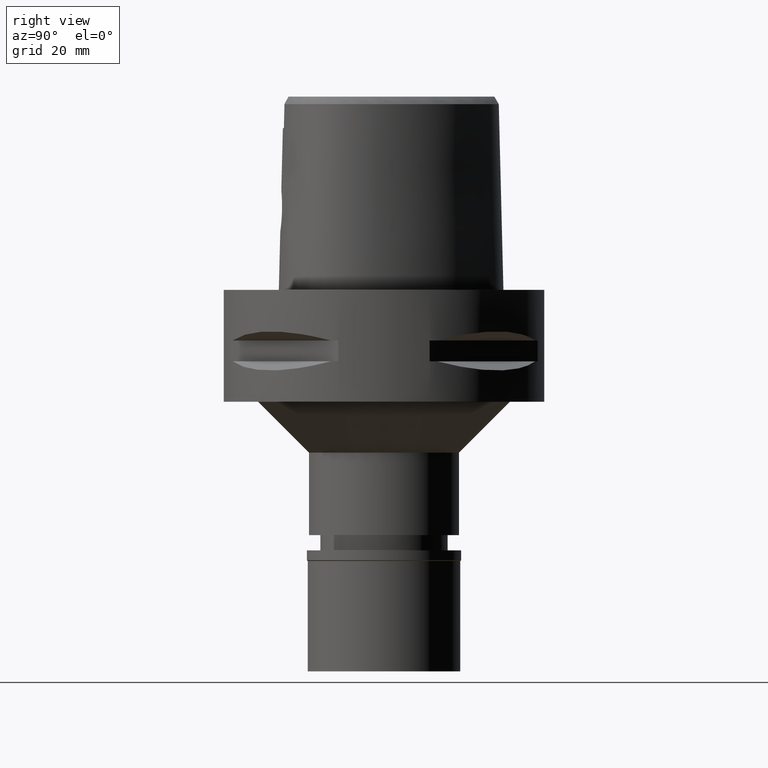
[diagram: clean part render]
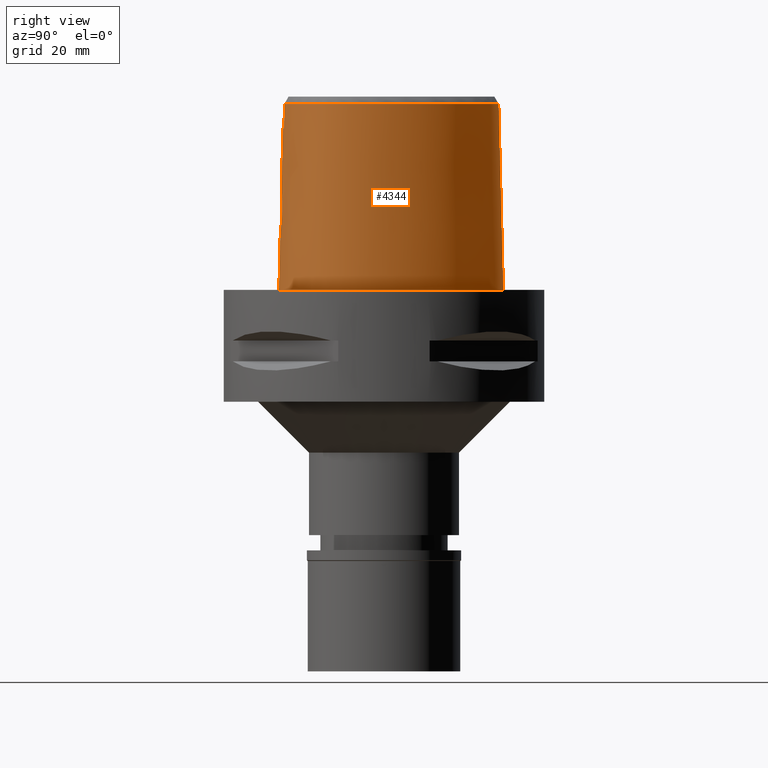
[diagram: same view with one face highlighted and labeled with its STEP entity id]
A machine part, right view. The second image highlights one B-rep face of the part: STEP entity #4344.
In plain terms, the highlighted face is a freeform B-spline surface patch.
Its self-contained STEP definition (entity closure, byte-faithful):
#2 = CARTESIAN_POINT ( 'NONE',  ( 20.36546124536000235, -11.75800453220999842, -0.7304376901931999289 ) ) ;
#5 = CARTESIAN_POINT ( 'NONE',  ( 21.32871516740315698, -4.105831245034091914, 36.52186680739941238 ) ) ;
#17 = CARTESIAN_POINT ( 'NONE',  ( 16.95889173002427341, -15.67838867706965900, -2.630565840567970770E-07 ) ) ;
#28 = CARTESIAN_POINT ( 'NONE',  ( 22.26285556564999979, -4.100361500046999730, -0.7304376901931999289 ) ) ;
#44 = CARTESIAN_POINT ( 'NONE',  ( 14.42198652022999994, 15.65278600269999920, -0.7304376901931999289 ) ) ;
#50 = CARTESIAN_POINT ( 'NONE',  ( 10.91891095220751673, -18.03046396093579773, 36.52186680739941238 ) ) ;
#54 = CARTESIAN_POINT ( 'NONE',  ( 1.219865165409127705, -20.36297158527778706, 11.63749257269483195 ) ) ;
#66 = CARTESIAN_POINT ( 'NONE',  ( 2.373090304260000227, 22.37624340749999874, 37.25232219984999915 ) ) ;
#77 = CARTESIAN_POINT ( 'NONE',  ( 2.711772060287280350, -20.25803822926189213, 12.49163124307199801 ) ) ;
#105 = CARTESIAN_POINT ( 'NONE',  ( 2.583733675546308728, -20.11473943910987217, 18.64718192965807475 ) ) ;
#113 = CARTESIAN_POINT ( 'NONE',  ( 18.06826689099458605, 10.43171875330947174, -2.630565840567970770E-07 ) ) ;
#134 = CARTESIAN_POINT ( 'NONE',  ( 20.74942741502001908, 4.657187502242146948, -2.630565840567970770E-07 ) ) ;
#142 = CARTESIAN_POINT ( 'NONE',  ( 0.6155340740543999711, 23.51883497781000187, -0.7304376901931999289 ) ) ;
#155 = B_SPLINE_CURVE_WITH_KNOTS ( 'NONE', 3,
 ( #664, #1854, #3633, #3702 ),
 .UNSPECIFIED., .F., .F.,
 ( 4, 4 ),
 ( 0.0000000000000000000, 1.000000000000000000 ),
 .UNSPECIFIED. ) ;
#249 = CARTESIAN_POINT ( 'NONE',  ( 4.037320270500147856, -20.06217555239358319, 15.17347118255400851 ) ) ;
#273 = CARTESIAN_POINT ( 'NONE',  ( 3.275508666035692684, -20.07468549012064685, 17.88642315786055192 ) ) ;
#306 = CARTESIAN_POINT ( 'NONE',  ( 21.68301101823999844, -0.3332744023961999869, 11.93048227316000087 ) ) ;
#336 = CARTESIAN_POINT ( 'NONE',  ( 20.76670354938999807, 4.663413654084999749, -0.7304376901931999289 ) ) ;
#340 = CARTESIAN_POINT ( 'NONE',  ( 21.14970177531621687, -6.717195943319146600, 36.52186680739941238 ) ) ;
#360 = CARTESIAN_POINT ( 'NONE',  ( 6.288476579520000165, -20.00290571784999827, 11.93048227316000087 ) ) ;
#374 = CARTESIAN_POINT ( 'NONE',  ( 2.113823673456931118, -20.67500000657368275, -2.630565840567970770E-07 ) ) ;
#383 = CARTESIAN_POINT ( 'NONE',  ( -0.4520500670585000380, -20.37458447450000065, 11.93048227316000087 ) ) ;
#387 = EDGE_LOOP ( 'NONE', ( #2809, #4068, #3466, #2979, #2609, #1724, #1441, #978 ) ) ;
#411 = CARTESIAN_POINT ( 'NONE',  ( 14.52531263442999965, -16.95413748471999682, 11.93048227316000087 ) ) ;
#425 = CARTESIAN_POINT ( 'NONE',  ( 19.64947366396549100, -12.82525391012334914, -2.630565840567970770E-07 ) ) ;
#449 = CARTESIAN_POINT ( 'NONE',  ( 2.848613685439987719, -20.24395829244677003, 12.62112757496808868 ) ) ;
#483 = EDGE_CURVE ( 'NONE', #1964, #969, #1864, .T. ) ;
#499 = CARTESIAN_POINT ( 'NONE',  ( -1.460230140215000123E-11, 22.56201468012000078, 36.52186680743999858 ) ) ;
#510 = CARTESIAN_POINT ( 'NONE',  ( 3.469630356889503719, -20.16798121912094643, 13.41060362757079893 ) ) ;
#518 = CARTESIAN_POINT ( 'NONE',  ( 2.503210905309000367, 22.99958939194999985, 11.93048227316000087 ) ) ;
#535 = CARTESIAN_POINT ( 'NONE',  ( 3.736696120837999402, -19.67778323291999953, 31.80000004972999861 ) ) ;
#538 = CARTESIAN_POINT ( 'NONE',  ( 10.14358069618999991, 18.45723410603999781, 37.25232219984999915 ) ) ;
#581 = VERTEX_POINT ( 'NONE', #3190 ) ;
#585 = CARTESIAN_POINT ( 'NONE',  ( 0.0000000000000000000, -20.18628283968999781, 19.55000000000000071 ) ) ;
#605 = CARTESIAN_POINT ( 'NONE',  ( 13.70645019738655712, 15.04851265230663238, 36.52186680739941238 ) ) ;
#627 = CARTESIAN_POINT ( 'NONE',  ( 4.049393697453843366, -20.05441213951198520, 15.42337965440385439 ) ) ;
#630 = CARTESIAN_POINT ( 'NONE',  ( 2.041042029990999821E-08, -19.88004246002000031, 31.80000004972000127 ) ) ;
#654 = CARTESIAN_POINT ( 'NONE',  ( 3.671061784063202715, -20.05144746199718853, 17.22306299922318473 ) ) ;
#659 = CARTESIAN_POINT ( 'NONE',  ( 3.714134554414315392, -20.13067798445663215, 13.88503166033152070 ) ) ;
#664 = CARTESIAN_POINT ( 'NONE',  ( 3.736696120837999402, -19.67778323291999953, 31.80000004972999861 ) ) ;
#694 = CARTESIAN_POINT ( 'NONE',  ( 21.13154878722999896, -6.714587063320999860, 37.25232219984999915 ) ) ;
#698 = CARTESIAN_POINT ( 'NONE',  ( 4.050923373174499353, -20.04626849400372635, 15.73971043423306249 ) ) ;
#717 = CARTESIAN_POINT ( 'NONE',  ( 21.99640701620999650, -0.2778990161798000069, -0.7304376901931999289 ) ) ;
#742 = CARTESIAN_POINT ( 'NONE',  ( 0.4958912124952452039, -20.18628283969000137, 19.54999999999999716 ) ) ;
#743 = CARTESIAN_POINT ( 'NONE',  ( 21.05621902229999876, -0.4440251748290999778, 37.25232219984999915 ) ) ;
#749 = CARTESIAN_POINT ( 'NONE',  ( 1.605675496238097466, -20.15775402917414638, 19.21816883475910132 ) ) ;
#768 = CARTESIAN_POINT ( 'NONE',  ( 16.77374383224999832, -15.44292473367000085, 11.93048227316000087 ) ) ;
#771 = CARTESIAN_POINT ( 'NONE',  ( 17.90324024157488481, -13.53935104436319570, 36.52186680739941238 ) ) ;
#790 = CARTESIAN_POINT ( 'NONE',  ( -0.6718836837517000449, -20.05378851114000227, 24.59140223650000223 ) ) ;
#803 = CARTESIAN_POINT ( 'NONE',  ( 1.534388859415401374, -20.34781517258398509, 11.75190816499364210 ) ) ;
#810 = CARTESIAN_POINT ( 'NONE',  ( 18.56841065620621833, -14.16937988734157550, -2.630565840567970770E-07 ) ) ;
#823 = CARTESIAN_POINT ( 'NONE',  ( 2.976602252401305826, -20.09217598727821041, 18.24682558851637992 ) ) ;
#828 = CARTESIAN_POINT ( 'NONE',  ( 0.2513501396035571211, -20.38876923347999792, 11.44999999999999396 ) ) ;
#861 = CARTESIAN_POINT ( 'NONE',  ( 3.495905227528453896, -20.16413712698769700, 13.45521254161289804 ) ) ;
#871 = CARTESIAN_POINT ( 'NONE',  ( -0.4558512677605000007, 22.85344972046999956, 24.59140223650000223 ) ) ;
#877 = DIRECTION ( 'NONE',  ( 2.246878499361959967E-12, 0.02499051290944955331, -0.9996876883629820520 ) ) ;
#897 = CARTESIAN_POINT ( 'NONE',  ( 0.5662264560993999218, 22.56729410046999718, 37.25232219984999915 ) ) ;
#912 = CARTESIAN_POINT ( 'NONE',  ( 3.498159005267005739, -20.16381233218497471, 13.45907162445321781 ) ) ;
#934 = CARTESIAN_POINT ( 'NONE',  ( 21.97832648437702474, -0.2810937488494387182, -2.630565840567970770E-07 ) ) ;
#961 = CARTESIAN_POINT ( 'NONE',  ( 3.584873406644804028, -20.15113690814169800, 13.61329894484012826 ) ) ;
#969 = VERTEX_POINT ( 'NONE', #4251 ) ;
#970 = VECTOR ( 'NONE', #1158, 1000.000000000000114 ) ;
#978 = ORIENTED_EDGE ( 'NONE', *, *, #1942, .T. ) ;
#983 = CARTESIAN_POINT ( 'NONE',  ( -0.6840631436342000660, -20.68668116417000391, -0.7304376901931999289 ) ) ;
#987 = CARTESIAN_POINT ( 'NONE',  ( 10.15538781006335256, 18.47129526703033875, 36.52186680739941238 ) ) ;
#1005 = CARTESIAN_POINT ( 'NONE',  ( 1.030786209601585401, -20.17735614173667358, 19.45770628435212046 ) ) ;
#1013 = CARTESIAN_POINT ( 'NONE',  ( 4.044199386196978274, -20.05895978658881518, 15.26807501688916702 ) ) ;
#1034 = CARTESIAN_POINT ( 'NONE',  ( 3.793289658177680934, -20.04579878032188844, 16.91967686894465217 ) ) ;
#1076 = CARTESIAN_POINT ( 'NONE',  ( 11.13012655668999784, -18.61140116354000185, 11.93048227316000087 ) ) ;
#1099 = CARTESIAN_POINT ( 'NONE',  ( 21.94536978922999992, -4.102220499227000161, 11.93048227316000087 ) ) ;
#1103 = CARTESIAN_POINT ( 'NONE',  ( 19.55745538001375650, -11.29150212658089458, 36.52186680739941238 ) ) ;
#1125 = CARTESIAN_POINT ( 'NONE',  ( -0.4439347112169999554, -19.74161831057000072, 37.25232219984999915 ) ) ;
#1155 = CARTESIAN_POINT ( 'NONE',  ( 10.91263706482000195, -18.01320796984999717, 37.25232219984999915 ) ) ;
#1158 = DIRECTION ( 'NONE',  ( -1.119946394831976099E-12, -0.02499051295360945474, -0.9996876883618780463 ) ) ;
#1161 = B_SPLINE_SURFACE_WITH_KNOTS ( 'NONE', 3, 3, ( 
 ( #983, #2491, #790, #1477 ),
 ( #1534, #383, #2649, #1125 ),
 ( #4060, #4504, #4781, #3760 ),
 ( #2308, #360, #1455, #4108 ),
 ( #3687, #1076, #1506, #1155 ),
 ( #2626, #411, #4483, #3028 ),
 ( #3007, #768, #3731, #1928 ),
 ( #3355, #1837, #1902, #1432 ),
 ( #3316, #4129, #2953, #4087 ),
 ( #2, #1860, #2934, #2597 ),
 ( #1174, #2670, #4805, #3708 ),
 ( #2282, #4408, #2976, #2577 ),
 ( #4431, #3380, #4036, #694 ),
 ( #28, #1099, #2203, #3660 ),
 ( #717, #306, #2235, #743 ),
 ( #336, #3337, #4828, #4453 ),
 ( #2257, #1882, #2791, #1265 ),
 ( #44, #2742, #4523, #3117 ),
 ( #2386, #3500, #3880, #538 ),
 ( #3402, #3426, #4603, #4629 ),
 ( #3142, #2005, #1221, #4577 ),
 ( #1949, #518, #2412, #66 ),
 ( #142, #1245, #2765, #897 ),
 ( #4231, #3450, #871, #1975 ),
 ( #4255, #2718, #4206, #3801 ) ),
 .UNSPECIFIED., .F., .F., .F.,
 ( 4, 1, 1, 1, 1, 1, 1, 1, 1, 1, 1, 1, 1, 1, 1, 1, 1, 1, 1, 1, 1, 1, 4 ),
 ( 4, 4 ),
 ( -0.008985960173611999210, 0.0000000000000000000, 0.08333333333348000305, 0.1666666666668000230, 0.2083333333334000115, 0.2500000000000999756, 0.2916666666666999919, 0.3125000000000000000, 0.3333333333333000081, 0.3541666666666999919, 0.3750000000000000000, 0.4166666666666999919, 0.4583333333332000326, 0.4999999999998999689, 0.5833333333332000326, 0.6666666666664999852, 0.7499999999998000488, 0.8333333333329999704, 0.8749999999997000177, 0.9166666666664000651, 0.9583333333329999704, 1.000000000000000000, 1.011710456763000199 ),
 ( 9.240667363241999710E-10, 0.9999999528726000175 ),
 .UNSPECIFIED. ) ;
#1163 = CARTESIAN_POINT ( 'NONE',  ( -1.826892150965000023E-12, -20.38876923348000147, 11.44999999999999929 ) ) ;
#1174 = CARTESIAN_POINT ( 'NONE',  ( 20.94844325891000025, -10.61175397008999965, -0.7304376901931999289 ) ) ;
#1177 = CARTESIAN_POINT ( 'NONE',  ( 20.09619608768545618, -10.23243839430404023, 36.52186680739941238 ) ) ;
#1205 = CARTESIAN_POINT ( 'NONE',  ( 1.524430413178668786, -20.34834955889443719, 11.74784251917236766 ) ) ;
#1221 = CARTESIAN_POINT ( 'NONE',  ( 4.868968420322000057, 21.95285537279000110, 24.59140223650000223 ) ) ;
#1227 = CARTESIAN_POINT ( 'NONE',  ( 2.929080277017244605, -20.09491796856691792, 18.29708437062509674 ) ) ;
#1245 = CARTESIAN_POINT ( 'NONE',  ( 0.5990982014026999813, 23.20165468536000120, 11.93048227316000087 ) ) ;
#1251 = CARTESIAN_POINT ( 'NONE',  ( 1.850318639452387837, -20.14814888732430731, 19.10387755932757869 ) ) ;
#1265 = CARTESIAN_POINT ( 'NONE',  ( 17.25769848016999930, 9.963736514489999863, 37.25232219984999915 ) ) ;
#1284 = CARTESIAN_POINT ( 'NONE',  ( 3.347716589598435544, -20.18528750072543687, 13.21508006755367148 ) ) ;
#1328 = CARTESIAN_POINT ( 'NONE',  ( 14.40795639463833133, 15.64093750426995300, -2.630565840567970770E-07 ) ) ;
#1359 = VECTOR ( 'NONE', #877, 1000.000000000000114 ) ;
#1392 = CARTESIAN_POINT ( 'NONE',  ( 3.567051467313223867, -20.05745210328765538, 17.43614685960502442 ) ) ;
#1432 = CARTESIAN_POINT ( 'NONE',  ( 17.88993650451999784, -13.52675015611000120, 37.25232219984999915 ) ) ;
#1441 = ORIENTED_EDGE ( 'NONE', *, *, #2709, .T. ) ;
#1455 = CARTESIAN_POINT ( 'NONE',  ( 6.232237582296000333, -19.68961178577000126, 24.59140223650000223 ) ) ;
#1477 = CARTESIAN_POINT ( 'NONE',  ( -0.6657939538104999944, -19.73734218461999745, 37.25232219984999915 ) ) ;
#1506 = CARTESIAN_POINT ( 'NONE',  ( 11.02138181075999945, -18.31230456668999906, 24.59140223650000223 ) ) ;
#1513 = LINE ( 'NONE', #3737, #970 ) ;
#1534 = CARTESIAN_POINT ( 'NONE',  ( -0.4561077449791999805, -20.69106755647000284, -0.7304376901931999289 ) ) ;
#1538 = CARTESIAN_POINT ( 'NONE',  ( 3.637738219117000238, -19.56971420299000286, 36.52185956443999970 ) ) ;
#1566 = CARTESIAN_POINT ( 'NONE',  ( 1.731179226819970385, -20.33718335707621705, 11.83283599535087660 ) ) ;
#1592 = CARTESIAN_POINT ( 'NONE',  ( 2.755116897213445881, -20.25370134099683739, 12.53106533904555064 ) ) ;
#1601 = CARTESIAN_POINT ( 'NONE',  ( 2.852199166577437772, -20.24357702585618313, 12.62467979476022428 ) ) ;
#1648 = CARTESIAN_POINT ( 'NONE',  ( 0.8548392427746057676, 23.47500000658105890, -2.630565840567970770E-07 ) ) ;
#1724 = ORIENTED_EDGE ( 'NONE', *, *, #483, .F. ) ;
#1725 = CARTESIAN_POINT ( 'NONE',  ( 3.729264728046254085, -20.12816254903642843, 13.92039768498280772 ) ) ;
#1741 = CARTESIAN_POINT ( 'NONE',  ( 1.559187069664278225, -20.15938993611732855, 19.23783847847215611 ) ) ;
#1774 = CARTESIAN_POINT ( 'NONE',  ( 3.672090960272019089, -20.13751531435220699, 13.79140235494528532 ) ) ;
#1813 = EDGE_CURVE ( 'NONE', #3017, #2795, #2039, .T. ) ;
#1837 = CARTESIAN_POINT ( 'NONE',  ( 18.35112154555000075, -13.96357036248999961, 11.93048227316000087 ) ) ;
#1854 = CARTESIAN_POINT ( 'NONE',  ( 3.704239288984441103, -19.64128042389065598, 33.37395322129999897 ) ) ;
#1860 = CARTESIAN_POINT ( 'NONE',  ( 20.09084474231999806, -11.59945461966000124, 11.93048227316000087 ) ) ;
#1864 = B_SPLINE_CURVE_WITH_KNOTS ( 'NONE', 3,
 ( #1163, #828, #3035, #3082, #4168, #54, #4534, #4563, #2342, #2680, #1205, #803, #1566, #3056, #2705, #3788, #1960, #3436, #77, #1592, #2326, #1939, #3418, #449, #1601, #2757, #3130, #3441, #1284, #3089, #510, #4568, #2732, #861, #2374, #4247, #912, #3873, #4688, #3540, #961, #2144, #1774, #3277, #659, #4342, #1725, #4744, #4318, #3947, #3228, #2121, #249, #1013, #3968, #627, #3256, #698, #2537, #4415, #3252, #2913, #3275, #1034, #2983, #4741, #4461, #2632, #654, #1392, #3993, #273, #3410, #1955, #4559, #823, #1227, #2316, #2723, #2364, #4584, #105, #1911, #3459, #1251, #4092, #4488, #3013, #749, #2265, #4262, #2113, #1741, #4212, #4285, #1005, #742, #2307 ),
 .UNSPECIFIED., .F., .F.,
 ( 4, 2, 2, 1, 1, 1, 2, 2, 2, 2, 2, 1, 1, 1, 1, 2, 2, 2, 2, 2, 1, 2, 2, 1, 1, 1, 2, 1, 1, 2, 2, 2, 2, 1, 2, 2, 2, 2, 1, 1, 1, 2, 2, 2, 2, 2, 1, 1, 1, 2, 2, 2, 2, 2, 1, 1, 1, 1, 2, 2, 4 ),
 ( 0.0000000000000000000, 0.06249999999996819211, 0.09374999999995230204, 0.1093749999999443362, 0.1171874999999402700, 0.1210937499999381328, 0.1230468749999371753, 0.1249999999999362038, 0.1874999999999024947, 0.2187499999998855915, 0.2343749999998772648, 0.2421874999998731848, 0.2460937499998710198, 0.2480468749998701039, 0.2490234374998696321, 0.2495117187498694933, 0.2499999999998693545, 0.2812499999998545053, 0.3124999999998396283, 0.3281249999998319122, 0.3320312499998293032, 0.3330078124998276379, 0.3334960937498280265, 0.3339843749998283595, 0.3359374999998291922, 0.3437499999998325229, 0.3593749999998396283, 0.3671874999998430700, 0.3710937499998449574, 0.3730468749998459010, 0.3749999999998468447, 0.4374999999998732680, 0.4687499999998864242, 0.4843749999998932521, 0.4921874999998966937, 0.4999999999999000799, 0.5624999999999263922, 0.5937499999999396039, 0.6093749999999462652, 0.6171874999999495959, 0.6210937499999515943, 0.6230468749999525935, 0.6249999999999535927, 0.6874999999999676925, 0.7187499999999747979, 0.7343749999999781286, 0.7421874999999796829, 0.7460937499999806821, 0.7480468749999814593, 0.7490234374999814593, 0.7499999999999815703, 0.8124999999999880096, 0.8437499999999913403, 0.8593749999999930056, 0.8671874999999941158, 0.8710937499999950040, 0.8730468749999957812, 0.8740234374999957812, 0.8745117187499958922, 0.8749999999999960032, 1.000000000000000000 ),
 .UNSPECIFIED. ) ;
#1882 = CARTESIAN_POINT ( 'NONE',  ( 17.80867308232999946, 10.28184208634000107, 11.93048227316000087 ) ) ;
#1886 = CARTESIAN_POINT ( 'NONE',  ( 20.67704204633799492, -8.734985285293122459, 36.52186680739941238 ) ) ;
#1894 = CARTESIAN_POINT ( 'NONE',  ( 6.341471020380248014, -20.29812500651166474, -2.630565840567971299E-07 ) ) ;
#1902 = CARTESIAN_POINT ( 'NONE',  ( 18.12052902503000240, -13.74516025929999863, 24.59140223650000223 ) ) ;
#1911 = CARTESIAN_POINT ( 'NONE',  ( 2.297745532186355799, -20.12839571576430586, 18.84583753174954524 ) ) ;
#1928 = CARTESIAN_POINT ( 'NONE',  ( 16.38077687421999684, -14.94316453829999958, 37.25232219984999915 ) ) ;
#1939 = CARTESIAN_POINT ( 'NONE',  ( 2.830674395381134190, -20.24585793370089348, 12.60345733394995271 ) ) ;
#1940 = CARTESIAN_POINT ( 'NONE',  ( 11.23259756953727972, -18.89324219370915614, -2.630565840567970770E-07 ) ) ;
#1942 = EDGE_CURVE ( 'NONE', #3834, #2133, #2175, .T. ) ;
#1949 = CARTESIAN_POINT ( 'NONE',  ( 2.568271205833000170, 23.31126238416999996, -0.7304376901931999289 ) ) ;
#1955 = CARTESIAN_POINT ( 'NONE',  ( 3.091817714564438102, -20.08547889364217554, 18.11707187816687892 ) ) ;
#1960 = CARTESIAN_POINT ( 'NONE',  ( 2.567087161092513892, -20.27199717915457455, 12.36663555135651116 ) ) ;
#1964 = VERTEX_POINT ( 'NONE', #4248 ) ;
#1975 = CARTESIAN_POINT ( 'NONE',  ( -0.4431573389301000088, 22.53713869913999801, 37.25232219984999915 ) ) ;
#1994 = CARTESIAN_POINT ( 'NONE',  ( 22.24453908514527001, -4.100468749961065917, -2.630565840567970770E-07 ) ) ;
#2005 = CARTESIAN_POINT ( 'NONE',  ( 4.987110668262999980, 22.24795280772000439, 11.93048227316000087 ) ) ;
#2039 = B_SPLINE_CURVE_WITH_KNOTS ( 'NONE', 3,
 ( #535, #2452, #4252, #4201 ),
 .UNSPECIFIED., .F., .F.,
 ( 4, 4 ),
 ( 0.0000000000000000000, 1.000000000000000000 ),
 .UNSPECIFIED. ) ;
#2042 = CARTESIAN_POINT ( 'NONE',  ( 6.748353224512000053E-11, 23.47499999998000320, 1.585028404822999899E-13 ) ) ;
#2095 = CARTESIAN_POINT ( 'NONE',  ( 2.376843874103810705, 22.39422497744194374, 36.52186680739941238 ) ) ;
#2113 = CARTESIAN_POINT ( 'NONE',  ( 1.561690862894663079, -20.15930425226070355, 19.23679373469693488 ) ) ;
#2118 = CARTESIAN_POINT ( 'NONE',  ( 19.88562079789137371, 4.345879946636808988, 36.52186680739941238 ) ) ;
#2121 = CARTESIAN_POINT ( 'NONE',  ( 4.018872909662280613, -20.06918023407216012, 14.98283012767668687 ) ) ;
#2123 = CARTESIAN_POINT ( 'NONE',  ( 6.818629255904112284E-09, -19.98212988583192740, 27.71666688228323849 ) ) ;
#2133 = VERTEX_POINT ( 'NONE', #2585 ) ;
#2144 = CARTESIAN_POINT ( 'NONE',  ( 3.630217463175393622, -20.14414823725011061, 13.70326604561266315 ) ) ;
#2175 = B_SPLINE_CURVE_WITH_KNOTS ( 'NONE', 3,
 ( #3722, #374, #1894, #1940, #3369, #17, #810, #425, #2425, #3492, #3111, #3471, #1994, #934, #134, #113, #1328, #2474, #2448, #3849, #4570, #1648, #2042 ),
 .UNSPECIFIED., .F., .F.,
 ( 4, 1, 1, 1, 1, 1, 1, 1, 1, 1, 1, 1, 1, 1, 1, 1, 1, 1, 1, 1, 4 ),
 ( 0.0000000000000000000, 0.08333333333348000305, 0.1666666666668000230, 0.2083333333334000115, 0.2500000000000999756, 0.2916666666666999919, 0.3125000000000000000, 0.3333333333333000081, 0.3541666666666999919, 0.3750000000000000000, 0.4166666666666999919, 0.4583333333332000326, 0.4999999999998999689, 0.5833333333332000326, 0.6666666666664999852, 0.7499999999998000488, 0.8333333333329999704, 0.8749999999997000177, 0.9166666666664000651, 0.9583333333329999704, 1.000000000000000000 ),
 .UNSPECIFIED. ) ;
#2203 = CARTESIAN_POINT ( 'NONE',  ( 21.62788401281000006, -4.104079498405999615, 24.59140223650000223 ) ) ;
#2235 = CARTESIAN_POINT ( 'NONE',  ( 21.36961502027000037, -0.3886497886126999979, 24.59140223650000223 ) ) ;
#2240 = CARTESIAN_POINT ( 'NONE',  ( 4.467522181836345752, -19.48130276147098883, 36.52186680739941238 ) ) ;
#2257 = CARTESIAN_POINT ( 'NONE',  ( 18.08416038341000132, 10.44089487227000035, -0.7304376901931999289 ) ) ;
#2265 = CARTESIAN_POINT ( 'NONE',  ( 1.579836640279240756, -20.15867432124533565, 19.22917139620736648 ) ) ;
#2282 = CARTESIAN_POINT ( 'NONE',  ( 21.57281239289000041, -9.001246195261998650, -0.7304376901931999289 ) ) ;
#2307 = CARTESIAN_POINT ( 'NONE',  ( 0.0000000000000000000, -20.18628283968999781, 19.55000000000000071 ) ) ;
#2308 = CARTESIAN_POINT ( 'NONE',  ( 6.344715576744000884, -20.31619964993000238, -0.7304376901931999289 ) ) ;
#2316 = CARTESIAN_POINT ( 'NONE',  ( 2.904840225682930210, -20.09631276697805546, 18.32215841610867102 ) ) ;
#2326 = CARTESIAN_POINT ( 'NONE',  ( 2.805524373475026145, -20.24849657925974711, 12.57900131335733818 ) ) ;
#2342 = CARTESIAN_POINT ( 'NONE',  ( 1.484574974416855042, -20.35045569501719243, 11.73183693770389802 ) ) ;
#2364 = CARTESIAN_POINT ( 'NONE',  ( 2.887330855258738893, -20.09731868803446986, 18.34004324470486580 ) ) ;
#2374 = CARTESIAN_POINT ( 'NONE',  ( 3.497549404348959445, -20.16389995369268462, 13.45802827219578823 ) ) ;
#2386 = CARTESIAN_POINT ( 'NONE',  ( 10.75753573831999965, 19.18839675771999964, -0.7304376901931999289 ) ) ;
#2412 = CARTESIAN_POINT ( 'NONE',  ( 2.438150604784000031, 22.68791639972999974, 24.59140223650000223 ) ) ;
#2418 = LINE ( 'NONE', #499, #1359 ) ;
#2425 = CARTESIAN_POINT ( 'NONE',  ( 20.34961799127496818, -11.74885742516477904, -2.630565840567970770E-07 ) ) ;
#2448 = CARTESIAN_POINT ( 'NONE',  ( 7.571159437682165816, 21.31457031818990089, -2.630565840567970770E-07 ) ) ;
#2452 = CARTESIAN_POINT ( 'NONE',  ( 2.503154195450096875, -19.81241979350480875, 31.80000012137765353 ) ) ;
#2469 = CARTESIAN_POINT ( 'NONE',  ( -1.460230140215000123E-11, 22.56201468012000078, 36.52186680743999858 ) ) ;
#2474 = CARTESIAN_POINT ( 'NONE',  ( 10.74572891483878934, 19.17433594255937379, -2.630565840567970770E-07 ) ) ;
#2491 = CARTESIAN_POINT ( 'NONE',  ( -0.6779734136930000155, -20.37023483765999998, 11.93048227316000087 ) ) ;
#2494 = CARTESIAN_POINT ( 'NONE',  ( 0.7901461619532074154, 22.56201467849688669, 36.52186680739941238 ) ) ;
#2537 = CARTESIAN_POINT ( 'NONE',  ( 4.027766547153435184, -20.04258681287064192, 15.99937165860792376 ) ) ;
#2577 = CARTESIAN_POINT ( 'NONE',  ( 20.65947748788000027, -8.729764354128999315, 37.25232219984999915 ) ) ;
#2582 = CARTESIAN_POINT ( 'NONE',  ( 2.041042029990999821E-08, -19.88004246002000031, 31.80000004972000127 ) ) ;
#2585 = CARTESIAN_POINT ( 'NONE',  ( 6.748353224512000053E-11, 23.47499999998000320, 1.585028404822999899E-13 ) ) ;
#2597 = CARTESIAN_POINT ( 'NONE',  ( 19.54161173625999837, -11.28235479456000157, 37.25232219984999915 ) ) ;
#2601 = CARTESIAN_POINT ( 'NONE',  ( 18.90964962507816693, -12.28759713487364635, 36.52186680739941238 ) ) ;
#2609 = ORIENTED_EDGE ( 'NONE', *, *, #4827, .T. ) ;
#2626 = CARTESIAN_POINT ( 'NONE',  ( 14.68244497131999893, -17.23001773053000107, -0.7304376901931999289 ) ) ;
#2632 = CARTESIAN_POINT ( 'NONE',  ( 3.752020160669019333, -20.04764955678190574, 17.02475796228262794 ) ) ;
#2649 = CARTESIAN_POINT ( 'NONE',  ( -0.4479923891377999845, -20.05810139253999935, 24.59140223650000223 ) ) ;
#2670 = CARTESIAN_POINT ( 'NONE',  ( 20.65879048791000017, -10.48283619680000101, 11.93048227316000087 ) ) ;
#2680 = CARTESIAN_POINT ( 'NONE',  ( 1.508494003805505912, -20.34919604422607264, 11.74140721997744308 ) ) ;
#2705 = CARTESIAN_POINT ( 'NONE',  ( 2.279262854244561876, -20.29726257587788041, 12.14962621715083735 ) ) ;
#2708 = EDGE_CURVE ( 'NONE', #581, #3157, #3205, .T. ) ;
#2709 = EDGE_CURVE ( 'NONE', #1964, #3834, #1513, .T. ) ;
#2718 = CARTESIAN_POINT ( 'NONE',  ( -0.7025952861020000606, 23.15559745533999703, 11.93048227316000087 ) ) ;
#2723 = CARTESIAN_POINT ( 'NONE',  ( 2.894348404567786304, -20.09691563938999082, 18.33289117554818759 ) ) ;
#2732 = CARTESIAN_POINT ( 'NONE',  ( 3.493735580813904562, -20.16445278256015072, 13.45150580052129641 ) ) ;
#2742 = CARTESIAN_POINT ( 'NONE',  ( 14.17879758905999843, 15.44741195594999894, 11.93048227316000087 ) ) ;
#2757 = CARTESIAN_POINT ( 'NONE',  ( 2.853073127697967060, -20.24348409910910007, 12.62554555813121482 ) ) ;
#2765 = CARTESIAN_POINT ( 'NONE',  ( 0.5826623287511000227, 22.88447439290999696, 24.59140223650000223 ) ) ;
#2791 = CARTESIAN_POINT ( 'NONE',  ( 17.53318578124999760, 10.12278930042000091, 24.59140223650000223 ) ) ;
#2795 = VERTEX_POINT ( 'NONE', #2582 ) ;
#2809 = ORIENTED_EDGE ( 'NONE', *, *, #3018, .F. ) ;
#2855 = CARTESIAN_POINT ( 'NONE',  ( 6.838598847829469373E-09, -20.08420636276060733, 23.63333344114165513 ) ) ;
#2913 = CARTESIAN_POINT ( 'NONE',  ( 3.865104720484402900, -20.04312534501203658, 16.71160290395945580 ) ) ;
#2934 = CARTESIAN_POINT ( 'NONE',  ( 19.81622823928999821, -11.44090470711000052, 24.59140223650000223 ) ) ;
#2953 = CARTESIAN_POINT ( 'NONE',  ( 19.15132523458999714, -12.46323150471999952, 24.59140223650000223 ) ) ;
#2976 = CARTESIAN_POINT ( 'NONE',  ( 20.96392245621999706, -8.820258301174000337, 24.59140223650000223 ) ) ;
#2979 = ORIENTED_EDGE ( 'NONE', *, *, #1813, .T. ) ;
#2983 = CARTESIAN_POINT ( 'NONE',  ( 3.771802522608157737, -20.04674283648343902, 16.97530164103380912 ) ) ;
#3007 = CARTESIAN_POINT ( 'NONE',  ( 16.97022731127000128, -15.69280483136000015, -0.7304376901931999289 ) ) ;
#3013 = CARTESIAN_POINT ( 'NONE',  ( 1.630218721836418361, -20.15684709205900305, 19.20745869697620734 ) ) ;
#3017 = VERTEX_POINT ( 'NONE', #3532 ) ;
#3018 = EDGE_CURVE ( 'NONE', #581, #2133, #2418, .T. ) ;
#3028 = CARTESIAN_POINT ( 'NONE',  ( 14.21104796064000020, -16.40237699312000075, 37.25232219984999915 ) ) ;
#3035 = CARTESIAN_POINT ( 'NONE',  ( 0.5088063821790111962, -20.38532954705304334, 11.47346643704968905 ) ) ;
#3056 = CARTESIAN_POINT ( 'NONE',  ( 1.943593473937262228, -20.32333704704653599, 11.93697895287765398 ) ) ;
#3082 = CARTESIAN_POINT ( 'NONE',  ( 0.8966844563889927455, -20.37501048777215829, 11.54831730743747187 ) ) ;
#3089 = CARTESIAN_POINT ( 'NONE',  ( 3.410581763122696231, -20.17643620763325529, 13.31457553428794327 ) ) ;
#3111 = CARTESIAN_POINT ( 'NONE',  ( 21.55524826642664138, -8.996025392505043072, -2.630565840567970770E-07 ) ) ;
#3117 = CARTESIAN_POINT ( 'NONE',  ( 13.69241972671999896, 15.03666386245999931, 37.25232219984999915 ) ) ;
#3130 = CARTESIAN_POINT ( 'NONE',  ( 3.029245166400706957, -20.22469991633780140, 12.80073754457675150 ) ) ;
#3142 = CARTESIAN_POINT ( 'NONE',  ( 5.105252916202999813, 22.54305024263999968, -0.7304376901931999289 ) ) ;
#3157 = VERTEX_POINT ( 'NONE', #3432 ) ;
#3190 = CARTESIAN_POINT ( 'NONE',  ( -1.460230140215000123E-11, 22.56201468012000078, 36.52186680743999858 ) ) ;
#3202 = CARTESIAN_POINT ( 'NONE',  ( 4.757642236484915799, 21.67478320247480994, 36.52186680739941238 ) ) ;
#3205 = B_SPLINE_CURVE_WITH_KNOTS ( 'NONE', 3,
 ( #2469, #2494, #2095, #3202, #4685, #987, #605, #4717, #2118, #3576, #5, #340, #1886, #1177, #1103, #2601, #771, #4090, #3407, #50, #4458, #2240, #1538 ),
 .UNSPECIFIED., .F., .F.,
 ( 4, 1, 1, 1, 1, 1, 1, 1, 1, 1, 1, 1, 1, 1, 1, 1, 1, 1, 1, 1, 4 ),
 ( 0.0000000000000000000, 0.04382683003322392773, 0.08765366006602699767, 0.1314804900989353931, 0.1753073201318437746, 0.2629609801974500116, 0.3506146402631615810, 0.4382683003288730395, 0.5259219603945846089, 0.5697487904274929349, 0.6135756204601908737, 0.6574024504930993107, 0.6793158655095008491, 0.7012292805260076367, 0.7231426955424091751, 0.7450561105588107136, 0.7888829405916140125, 0.8327097706245223385, 0.8765366006573255264, 0.9641902607230579125, 1.000000000000000000 ),
 .UNSPECIFIED. ) ;
#3228 = CARTESIAN_POINT ( 'NONE',  ( 4.000319215633024506, -20.07461422194992551, 14.85381651283538140 ) ) ;
#3252 = CARTESIAN_POINT ( 'NONE',  ( 3.922209079865676795, -20.04162134375891213, 16.51825356497997888 ) ) ;
#3256 = CARTESIAN_POINT ( 'NONE',  ( 4.049852811309849088, -20.05360933185562544, 15.45302219638868735 ) ) ;
#3275 = CARTESIAN_POINT ( 'NONE',  ( 3.834022054607135743, -20.04414392452003923, 16.80798603623646414 ) ) ;
#3277 = CARTESIAN_POINT ( 'NONE',  ( 3.692160086128115193, -20.13428778990169121, 13.83501363077828650 ) ) ;
#3316 = CARTESIAN_POINT ( 'NONE',  ( 19.66427014647999982, -12.83600704688999983, -0.7304376901931999289 ) ) ;
#3337 = CARTESIAN_POINT ( 'NONE',  ( 20.46725044580000130, 4.555493649943000101, 11.93048227316000087 ) ) ;
#3355 = CARTESIAN_POINT ( 'NONE',  ( 18.58171406606000176, -14.18198046568000059, -0.7304376901931999289 ) ) ;
#3369 = CARTESIAN_POINT ( 'NONE',  ( 14.67337964745646950, -17.21410156823449356, -2.630565840567970770E-07 ) ) ;
#3380 = CARTESIAN_POINT ( 'NONE',  ( 21.76083712332999909, -6.805026044788999862, 11.93048227316000087 ) ) ;
#3402 = CARTESIAN_POINT ( 'NONE',  ( 7.580410840289999896, 21.33037926313000199, -0.7304376901931999289 ) ) ;
#3407 = CARTESIAN_POINT ( 'NONE',  ( 14.22011350746772429, -16.41829354687743248, 36.52186680739941238 ) ) ;
#3410 = CARTESIAN_POINT ( 'NONE',  ( 3.139737953523736191, -20.08267170725653372, 18.05927992033200979 ) ) ;
#3418 = CARTESIAN_POINT ( 'NONE',  ( 2.843234292961080989, -20.24452954474889310, 12.61580804617098117 ) ) ;
#3426 = CARTESIAN_POINT ( 'NONE',  ( 7.420053137336999782, 21.05635745214999943, 11.93048227316000087 ) ) ;
#3432 = CARTESIAN_POINT ( 'NONE',  ( 3.637738219117000238, -19.56971420299000286, 36.52185956443999970 ) ) ;
#3436 = CARTESIAN_POINT ( 'NONE',  ( 2.625014359170771083, -20.26654622435060915, 12.41491316935675293 ) ) ;
#3441 = CARTESIAN_POINT ( 'NONE',  ( 3.157162818670113946, -20.20941935507770637, 12.95827058907324414 ) ) ;
#3450 = CARTESIAN_POINT ( 'NONE',  ( -0.4685451965910000238, 23.16976074180000111, 11.93048227316000087 ) ) ;
#3459 = CARTESIAN_POINT ( 'NONE',  ( 1.952212796618560064, -20.14384054291338444, 19.05095846590822362 ) ) ;
#3466 = ORIENTED_EDGE ( 'NONE', *, *, #3977, .F. ) ;
#3471 = CARTESIAN_POINT ( 'NONE',  ( 22.05732874976065716, -6.847636719689412566, -2.630565840567970770E-07 ) ) ;
#3492 = CARTESIAN_POINT ( 'NONE',  ( 20.93173252813967622, -10.60431640892486627, -2.630565840567970770E-07 ) ) ;
#3500 = CARTESIAN_POINT ( 'NONE',  ( 10.55288405760999915, 18.94467587383000051, 11.93048227316000087 ) ) ;
#3532 = CARTESIAN_POINT ( 'NONE',  ( 3.736696120837999402, -19.67778323291999953, 31.80000004972999861 ) ) ;
#3540 = CARTESIAN_POINT ( 'NONE',  ( 3.529523323543580116, -20.15928605876400326, 13.51338441782936606 ) ) ;
#3576 = CARTESIAN_POINT ( 'NONE',  ( 21.07429999882873872, -0.4408303635841118728, 36.52186680739941238 ) ) ;
#3633 = CARTESIAN_POINT ( 'NONE',  ( 3.671249151389730514, -19.60525176641679579, 34.94790639287000289 ) ) ;
#3660 = CARTESIAN_POINT ( 'NONE',  ( 21.31039823639999753, -4.105938497586000047, 37.25232219984999915 ) ) ;
#3687 = CARTESIAN_POINT ( 'NONE',  ( 11.23887130261999978, -18.91049776039000108, -0.7304376901931999289 ) ) ;
#3702 = CARTESIAN_POINT ( 'NONE',  ( 3.637738219117000238, -19.56971420299000286, 36.52185956443999970 ) ) ;
#3708 = CARTESIAN_POINT ( 'NONE',  ( 20.07948494590999999, -10.22500065020999926, 37.25232219984999915 ) ) ;
#3722 = CARTESIAN_POINT ( 'NONE',  ( -1.465428451571000222E-11, -20.67499999999999716, 1.614634352146999882E-13 ) ) ;
#3731 = CARTESIAN_POINT ( 'NONE',  ( 16.57726035323000247, -15.19304463597999799, 24.59140223650000223 ) ) ;
#3737 = CARTESIAN_POINT ( 'NONE',  ( -1.826892150965000023E-12, -20.38876923348000147, 11.44999999999999929 ) ) ;
#3760 = CARTESIAN_POINT ( 'NONE',  ( 1.836480379695999865, -19.76356514822000321, 37.25232219984999915 ) ) ;
#3788 = CARTESIAN_POINT ( 'NONE',  ( 2.393899589051283971, -20.28768691780097910, 12.22992633107207006 ) ) ;
#3801 = CARTESIAN_POINT ( 'NONE',  ( -0.6642815287322000328, 22.52377639156999933, 37.25232219984999915 ) ) ;
#3834 = VERTEX_POINT ( 'NONE', #4299 ) ;
#3849 = CARTESIAN_POINT ( 'NONE',  ( 5.098437019738033094, 22.52602539675663706, -2.630565840567970770E-07 ) ) ;
#3873 = CARTESIAN_POINT ( 'NONE',  ( 3.500424038740759247, -20.16348685976300814, 13.46295885921552582 ) ) ;
#3880 = CARTESIAN_POINT ( 'NONE',  ( 10.34823237690000042, 18.70095498993000049, 24.59140223650000223 ) ) ;
#3947 = CARTESIAN_POINT ( 'NONE',  ( 3.924005771798402264, -20.09320878585933201, 14.46312661955231960 ) ) ;
#3968 = CARTESIAN_POINT ( 'NONE',  ( 4.047747453951194174, -20.05617388333580564, 15.36143397469151139 ) ) ;
#3977 = EDGE_CURVE ( 'NONE', #3017, #3157, #155, .T. ) ;
#3993 = CARTESIAN_POINT ( 'NONE',  ( 3.355361221622798595, -20.06994180139139772, 17.77190586964664831 ) ) ;
#4036 = CARTESIAN_POINT ( 'NONE',  ( 21.44619295528000080, -6.759806554055000305, 24.59140223650000223 ) ) ;
#4060 = CARTESIAN_POINT ( 'NONE',  ( 1.886855603282999949, -20.71358919565999912, -0.7304376901931999289 ) ) ;
#4068 = ORIENTED_EDGE ( 'NONE', *, *, #2708, .T. ) ;
#4087 = CARTESIAN_POINT ( 'NONE',  ( 18.89485277864000068, -12.27684373363000070, 37.25232219984999915 ) ) ;
#4090 = CARTESIAN_POINT ( 'NONE',  ( 16.39211273426696636, -14.95758104715914705, 36.52186680739941238 ) ) ;
#4092 = CARTESIAN_POINT ( 'NONE',  ( 1.721431782515900233, -20.15335150698257038, 19.16625841297044985 ) ) ;
#4108 = CARTESIAN_POINT ( 'NONE',  ( 6.175998585071999614, -19.37631785369000070, 37.25232219984999915 ) ) ;
#4129 = CARTESIAN_POINT ( 'NONE',  ( 19.40779769052999981, -12.64961927581000012, 11.93048227316000087 ) ) ;
#4168 = CARTESIAN_POINT ( 'NONE',  ( 1.026239959185886619, -20.37071087973846062, 11.57986350528006980 ) ) ;
#4201 = CARTESIAN_POINT ( 'NONE',  ( 2.041042029990999821E-08, -19.88004246002000031, 31.80000004972000127 ) ) ;
#4206 = CARTESIAN_POINT ( 'NONE',  ( -0.6834384074170999357, 22.83968692346000040, 24.59140223650000223 ) ) ;
#4212 = CARTESIAN_POINT ( 'NONE',  ( 1.557526315576272857, -20.15944664856569446, 19.23853080576349939 ) ) ;
#4231 = CARTESIAN_POINT ( 'NONE',  ( -0.4812391254214000158, 23.48607176312999911, -0.7304376901931999289 ) ) ;
#4247 = CARTESIAN_POINT ( 'NONE',  ( 3.498011185305311965, -20.16383351064081708, 13.45881949824806156 ) ) ;
#4248 = CARTESIAN_POINT ( 'NONE',  ( -1.826892150965000023E-12, -20.38876923348000147, 11.44999999999999929 ) ) ;
#4251 = CARTESIAN_POINT ( 'NONE',  ( 0.0000000000000000000, -20.18628283968999781, 19.55000000000000071 ) ) ;
#4252 = CARTESIAN_POINT ( 'NONE',  ( 1.251533272179266687, -19.88005341395014014, 31.80000012137765353 ) ) ;
#4255 = CARTESIAN_POINT ( 'NONE',  ( -0.7217521647868999635, 23.47150798723000165, -0.7304376901931999289 ) ) ;
#4262 = CARTESIAN_POINT ( 'NONE',  ( 1.567621601509440188, -20.15910001697348974, 19.23431204804637318 ) ) ;
#4285 = CARTESIAN_POINT ( 'NONE',  ( 1.557929368079547849, -20.15943300600224930, 19.23836341460693333 ) ) ;
#4299 = CARTESIAN_POINT ( 'NONE',  ( -1.465428451571000222E-11, -20.67499999999999716, 1.614634352146999882E-13 ) ) ;
#4318 = CARTESIAN_POINT ( 'NONE',  ( 3.845500310728331428, -20.10866196216711899, 14.19766434134617406 ) ) ;
#4342 = CARTESIAN_POINT ( 'NONE',  ( 3.723252110454165376, -20.12916427635459371, 13.90627712338180899 ) ) ;
#4344 = ADVANCED_FACE ( 'NONE', ( #4682 ), #1161, .T. ) ;
#4408 = CARTESIAN_POINT ( 'NONE',  ( 21.26836742455000007, -8.910752248217999494, 11.93048227316000087 ) ) ;
#4415 = CARTESIAN_POINT ( 'NONE',  ( 3.953526226431582469, -20.04132955327397880, 16.38857989503754808 ) ) ;
#4431 = CARTESIAN_POINT ( 'NONE',  ( 22.07548129138000093, -6.850245535522999418, -0.7304376901931999289 ) ) ;
#4453 = CARTESIAN_POINT ( 'NONE',  ( 19.86834423861000332, 4.339653641660000005, 37.25232219984999915 ) ) ;
#4458 = CARTESIAN_POINT ( 'NONE',  ( 7.300578979383045564, -19.07170738130582777, 36.52186680739941238 ) ) ;
#4461 = CARTESIAN_POINT ( 'NONE',  ( 3.756000164610493908, -20.04746436899003470, 17.01493750313663966 ) ) ;
#4483 = CARTESIAN_POINT ( 'NONE',  ( 14.36818029752999770, -16.67825723892000056, 24.59140223650000223 ) ) ;
#4488 = CARTESIAN_POINT ( 'NONE',  ( 1.682437802953202333, -20.15487573070894811, 19.18420348548175625 ) ) ;
#4504 = CARTESIAN_POINT ( 'NONE',  ( 1.870063862087000039, -20.39691451318000048, 11.93048227316000087 ) ) ;
#4523 = CARTESIAN_POINT ( 'NONE',  ( 13.93560865789000047, 15.24203790920000046, 24.59140223650000223 ) ) ;
#4534 = CARTESIAN_POINT ( 'NONE',  ( 1.316499047612668782, -20.35877946744494338, 11.66888286616738668 ) ) ;
#4559 = CARTESIAN_POINT ( 'NONE',  ( 3.015711487639958222, -20.08990734423111846, 18.20360125059391265 ) ) ;
#4563 = CARTESIAN_POINT ( 'NONE',  ( 1.428667258698484099, -20.35332433975217370, 11.71008411944540839 ) ) ;
#4568 = CARTESIAN_POINT ( 'NONE',  ( 3.483353738040395609, -20.16596654813782408, 13.43384041304467402 ) ) ;
#4570 = CARTESIAN_POINT ( 'NONE',  ( 2.564517728308376210, 23.29328125647911563, -2.630565840567970770E-07 ) ) ;
#4577 = CARTESIAN_POINT ( 'NONE',  ( 4.750826172381000134, 21.65775793786000136, 37.25232219984999915 ) ) ;
#4584 = CARTESIAN_POINT ( 'NONE',  ( 2.884912289193770629, -20.09745756220439006, 18.34250321451516186 ) ) ;
#4603 = CARTESIAN_POINT ( 'NONE',  ( 7.259695434383000467, 20.78233564115999954, 24.59140223650000223 ) ) ;
#4629 = CARTESIAN_POINT ( 'NONE',  ( 7.099337731429000264, 20.50831383017999698, 37.25232219984999915 ) ) ;
#4643 = B_SPLINE_CURVE_WITH_KNOTS ( 'NONE', 3,
 ( #630, #2123, #2855, #585 ),
 .UNSPECIFIED., .F., .F.,
 ( 4, 4 ),
 ( 0.0000000000000000000, 1.000000000000000000 ),
 .UNSPECIFIED. ) ;
#4682 = FACE_OUTER_BOUND ( 'NONE', #387, .T. ) ;
#4685 = CARTESIAN_POINT ( 'NONE',  ( 7.108589361577743126, 20.52412316394554992, 36.52186680739941238 ) ) ;
#4688 = CARTESIAN_POINT ( 'NONE',  ( 3.506073381354215535, -20.16267433674195075, 13.47267283510772451 ) ) ;
#4717 = CARTESIAN_POINT ( 'NONE',  ( 17.27359236349033722, 9.972912859139757558, 36.52186680739941238 ) ) ;
#4741 = CARTESIAN_POINT ( 'NONE',  ( 3.762353201614065057, -20.04717242375137332, 16.99909014447707634 ) ) ;
#4744 = CARTESIAN_POINT ( 'NONE',  ( 3.731731645010579967, -20.12775037561419822, 13.92622794807159714 ) ) ;
#4781 = CARTESIAN_POINT ( 'NONE',  ( 1.853272120891999997, -20.08023983069999829, 24.59140223650000223 ) ) ;
#4805 = CARTESIAN_POINT ( 'NONE',  ( 20.36913771691000008, -10.35391842350000147, 24.59140223650000223 ) ) ;
#4827 = EDGE_CURVE ( 'NONE', #2795, #969, #4643, .T. ) ;
#4828 = CARTESIAN_POINT ( 'NONE',  ( 20.16779734220000364, 4.447573645802000541, 24.59140223650000223 ) ) ;